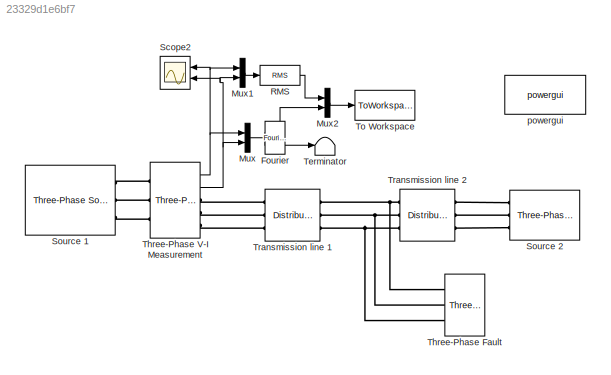
MODEL slx_23329d1e6bf7
KIND model
CONFIG AbsTol = auto
CONFIG EnableMultiTasking = off
CONFIG FixedStep = auto
CONFIG MaxStep = auto
CONFIG MinStep = auto
CONFIG RelTol = 1e-3
CONFIG SampleTimeConstraint = Unconstrained
CONFIG Solver = VariableStepAuto
CONFIG SolverName = VariableStepAuto
CONFIG StartTime = 0.0
CONFIG StopFcn = % fault = 0\n% % \n% % \n% % \n% % \n% location = 0\n% % \n% % \n% % \n% %\n% %\n% simout(:,13) = fault;\n% simout(:,14) = location;\n% data = xlsread('<path>');\n% data = [data;simout];\n% xlswrite('<path>',data);\n
CONFIG StopTime = 1
BLOCK [Reference] Fourier  REF=powerlib_meascontrol/Measurements/Fourier
  Ports = [1, 2]
  SourceBlock = powerlib_meascontrol/Measurements/Fourier
  SourceProductBaseCode = PS
  SourceProductName = Simscape Power Systems
  SourceType = Fourier
BLOCK [Mux] Mux
  DisplayOption = bar
  Inputs = 2
  Ports = [2, 1]
BLOCK [Mux] Mux1
  DisplayOption = bar
  Inputs = 2
  Ports = [2, 1]
BLOCK [Mux] Mux2
  DisplayOption = bar
  Inputs = 2
  Ports = [2, 1]
BLOCK [Reference] RMS  REF=powerlib_meascontrol/Measurements/RMS
  Ports = [1, 1]
  SourceBlock = powerlib_meascontrol/Measurements/RMS
  SourceProductBaseCode = PS
  SourceProductName = Simscape Power Systems
  SourceType = RMS
BLOCK [Scope] Scope2
  Floating = off
  NumInputPorts = 2
  Ports = [2]
  ScopeSpecificationString = Simulink.scopes.TimeScopeBlockCfg('CurrentConfiguration', extmgr.ConfigurationSet(extmgr.Configuration('Core','General UI',true),extmgr.Configuration('Core','Source UI',true),extmgr.Configuration('Sources','WiredSimulink',true,'DataLoggingVariableName','ScopeData1'),extmgr.Configuration('Visuals','Time Domain',true,'SerializedDisplays',{struct('MinYLimReal','-1.71406','MaxYLimReal','1.62058','YLab...<+2175ch>
BLOCK [Reference] Source 1  REF=powerlib/Electrical
Sources/Three-Phase Source
  Ports = [0, 0, 0, 0, 0, 0, 3]
  SourceBlock = powerlib/Electrical\nSources/Three-Phase Source
  SourceProductBaseCode = PS
  SourceProductName = Simscape Power Systems
  SourceType = Three-Phase Source
BLOCK [Reference] Source 2  REF=powerlib/Electrical
Sources/Three-Phase Source
  Ports = [0, 0, 0, 0, 0, 0, 3]
  SourceBlock = powerlib/Electrical\nSources/Three-Phase Source
  SourceProductBaseCode = PS
  SourceProductName = Simscape Power Systems
  SourceType = Three-Phase Source
BLOCK [Terminator] Terminator
BLOCK [Reference] Three-Phase Fault  REF=powerlib/Elements/Three-Phase Fault
  Ports = [0, 0, 0, 0, 0, 3]
  SourceBlock = powerlib/Elements/Three-Phase Fault
  SourceProductBaseCode = PS
  SourceProductName = Simscape Power Systems
  SourceType = Three-Phase Fault
BLOCK [Reference] Three-Phase V-I Measurement  REF=powerlib/Measurements/Three-Phase
V-I Measurement
  Ports = [0, 2, 0, 0, 0, 3, 3]
  SourceBlock = powerlib/Measurements/Three-Phase\nV-I Measurement
  SourceProductBaseCode = PS
  SourceProductName = Simscape Power Systems
  SourceType = Three-Phase VI Measurement
BLOCK [ToWorkspace] To Workspace
  FixptAsFi = on
  MaxDataPoints = 200
  Ports = [1]
  SampleTime = -1
  Save2DSignal = 2-D array (concatenate along first dimension)
  VariableName = simout
BLOCK [Reference] Transmission line 1  REF=powerlib/Elements/Distributed Parameters Line
  Ports = [0, 0, 0, 0, 0, 3, 3]
  SourceBlock = powerlib/Elements/Distributed Parameters Line
  SourceProductBaseCode = PS
  SourceProductName = Simscape Power Systems
  SourceType = Distributed Parameters Line
BLOCK [Reference] Transmission line 2  REF=powerlib/Elements/Distributed Parameters Line
  Ports = [0, 0, 0, 0, 0, 3, 3]
  SourceBlock = powerlib/Elements/Distributed Parameters Line
  SourceProductBaseCode = PS
  SourceProductName = Simscape Power Systems
  SourceType = Distributed Parameters Line
BLOCK [Reference] powergui  REF=powerlib/powergui
  Ports = []
  Priority = 1
  SourceBlock = powerlib/powergui
  SourceProductBaseCode = PS
  SourceProductName = Simscape Power Systems
  SourceType = PSB option menu block
LINE Fourier:1 -> Terminator:1
LINE Fourier:2 -> Mux2:2
LINE Mux1:1 -> RMS:1
LINE Mux2:1 -> To Workspace:1
LINE Mux:1 -> Fourier:1
LINE RMS:1 -> Mux2:1
NET Three-Phase V-I Measurement:1 -> Mux1:1, Mux:1, Scope2:1
NET Three-Phase V-I Measurement:2 -> Mux1:2, Mux:2, Scope2:2
PLINE Source 1:RConn1 -- Three-Phase V-I Measurement:LConn1
PLINE Source 1:RConn2 -- Three-Phase V-I Measurement:LConn2
PLINE Source 1:RConn3 -- Three-Phase V-I Measurement:LConn3
PLINE Source 2:RConn1 -- Transmission line 2:RConn1
PLINE Source 2:RConn2 -- Transmission line 2:RConn2
PLINE Source 2:RConn3 -- Transmission line 2:RConn3
PNET net1: Three-Phase Fault:LConn1 -- Transmission line 1:RConn1 -- Transmission line 2:LConn1
PNET net2: Three-Phase Fault:LConn2 -- Transmission line 1:RConn2 -- Transmission line 2:LConn2
PNET net3: Three-Phase Fault:LConn3 -- Transmission line 1:RConn3 -- Transmission line 2:LConn3
PLINE Three-Phase V-I Measurement:RConn1 -- Transmission line 1:LConn1
PLINE Three-Phase V-I Measurement:RConn2 -- Transmission line 1:LConn2
PLINE Three-Phase V-I Measurement:RConn3 -- Transmission line 1:LConn3
note: NET lines group one-source signal fan-out (src -> all destinations, sorted); 1:1 wires keep LINE; PNET lines group multi-terminal physical nets as a canonical sorted terminal list (undirected conserving connections); 2-terminal nets keep the pairwise PLINE form
note: 2 file-system paths scrubbed to <path> (not preserved elsewhere — flat text is the only slx artifact)
